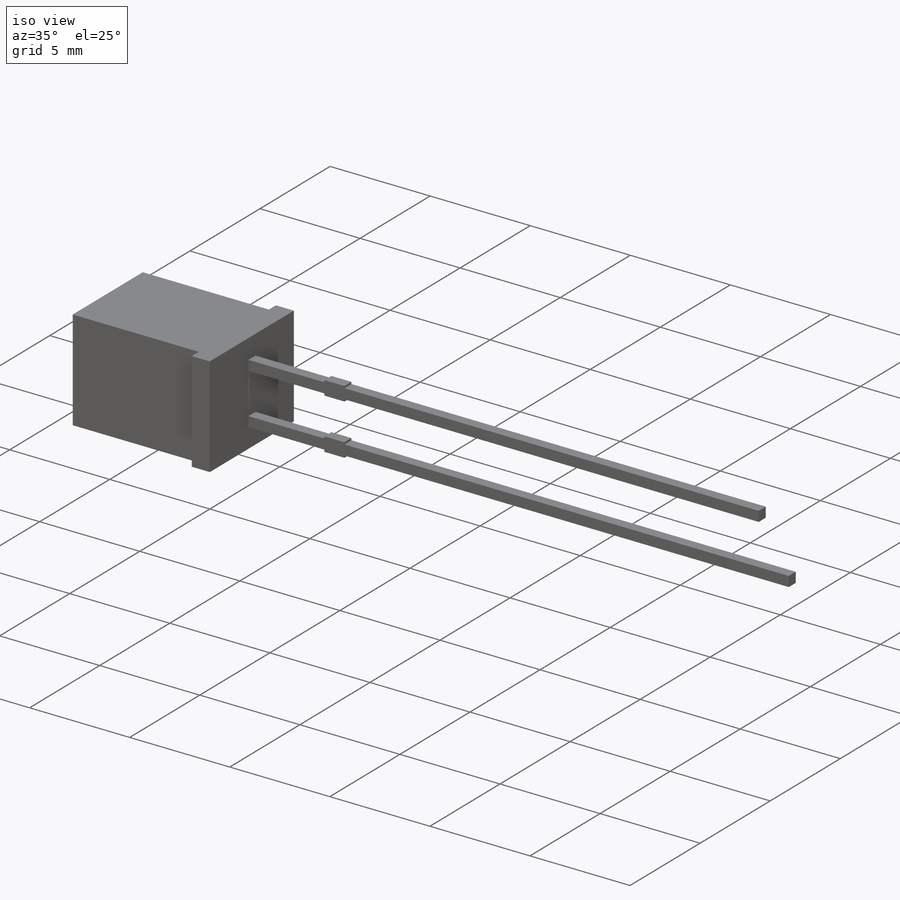
[diagram: iso view]
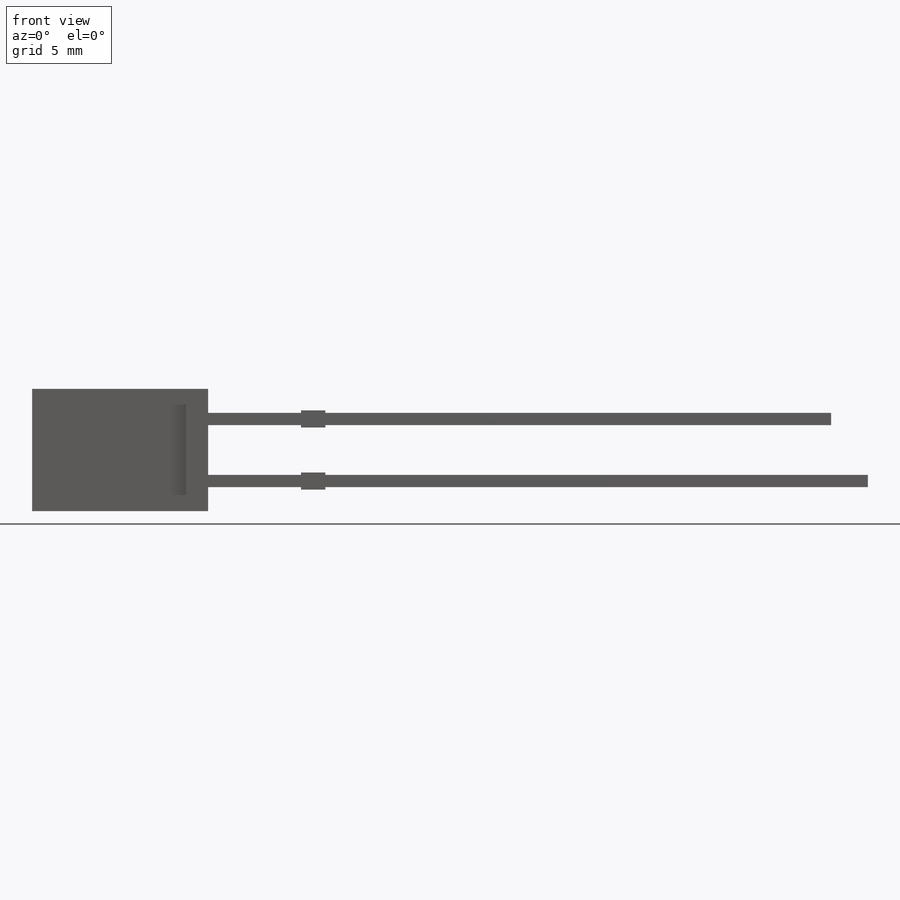
[diagram: front view]
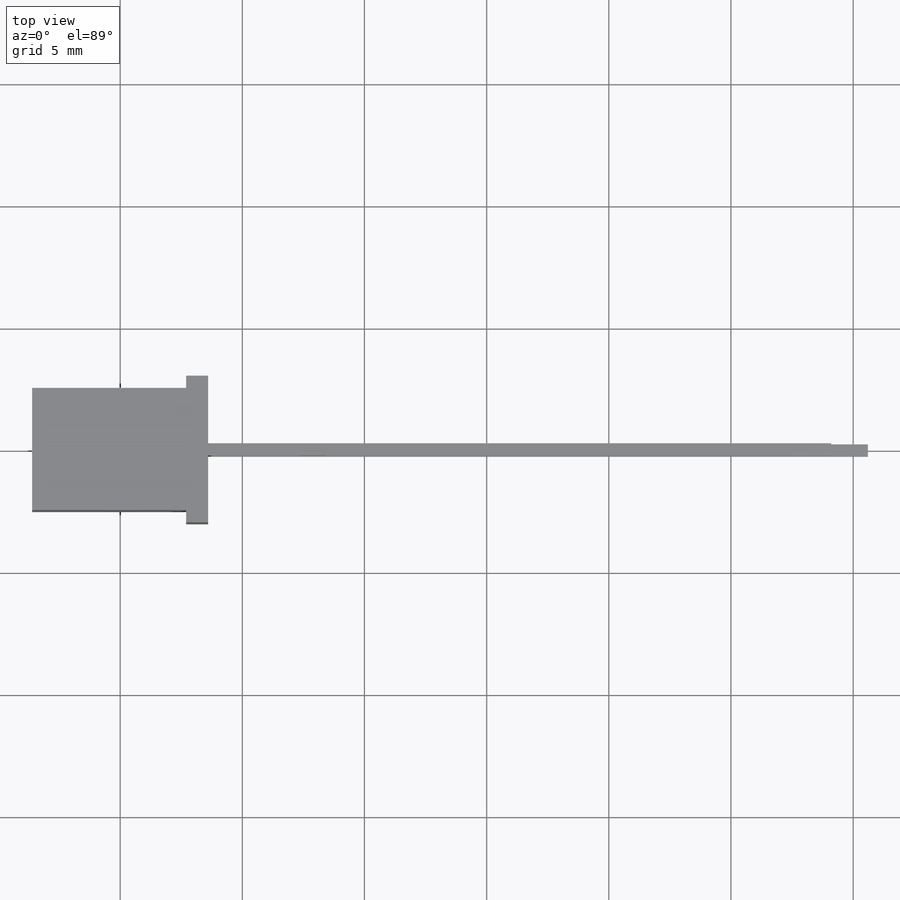
[diagram: top view]
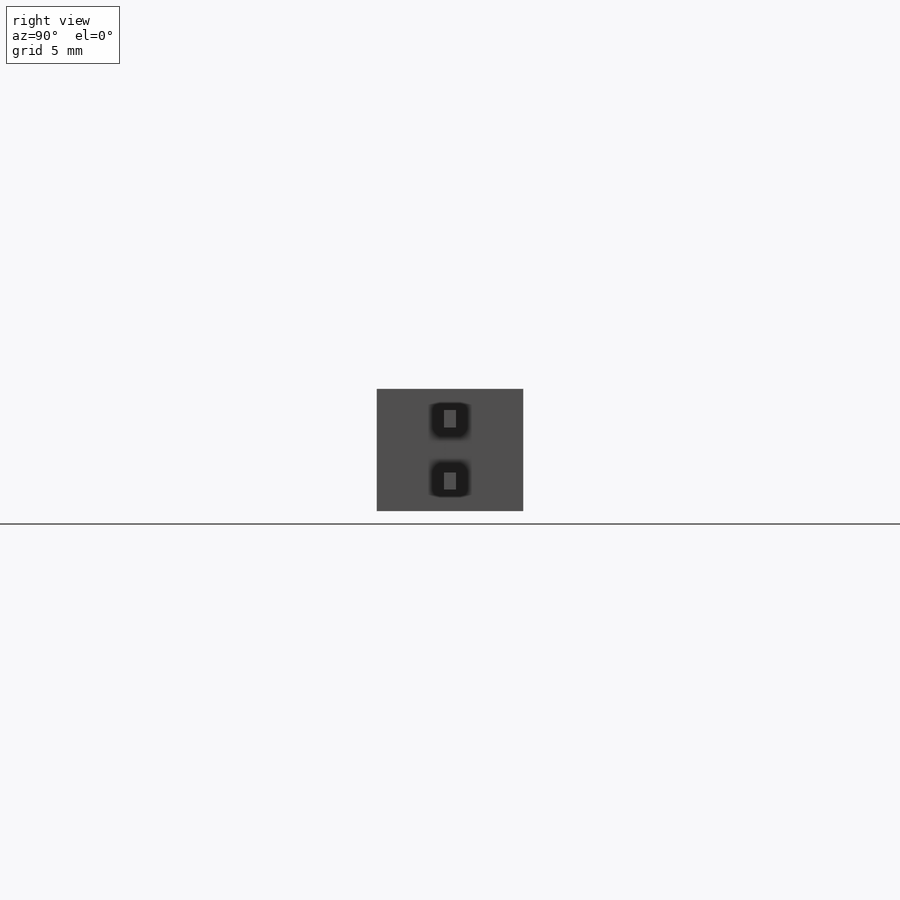
[diagram: right view]
SOLIDWORKS PART (.sldprt)
format: sldprt  version: not decoded by parser v0  size: 664,576 bytes
history: native  units: mm
features: sketch x4, extrude x3, material x1, cut_extrude x1 (+12 scaffold rows collapsed)
feature tree (21):
  scaffold x12  (default folders/planes/origin — collapsed)
  material  "Material <not specified>"
  sketch  "Sketch1"  dims[c1.D1=5.0mm c1.D2=7.2mm c1.D3=2.54mm c1.D4=27.0mm c1.D5=1.5mm c1.D6=0.5mm c1.D7=0.7mm c1.D8=1.0mm c1.D9=5.0mm c1.D10=6.3mm c2.D9=11.0mm]
  extrude  "Extrude1"  Depth=5mm
  extrude  "Extrude2"  [1 undecoded]
  sketch  "Sketch1<4>"  dims[D1=0.5mm]
  extrude  "Extrude3"  [1 undecoded]
  sketch  "Sketch1<5>"  dims[D1=6.0mm]
  sketch  "Sketch2"
  cut_extrude  "Cut-Extrude1"  Depth=0.01mm
decode coverage: 5 of 8 modeling features carry decoded parameters
note: 2 parameter values undecoded
note: suppression state not decoded; provenance and decode notes live in map.json
